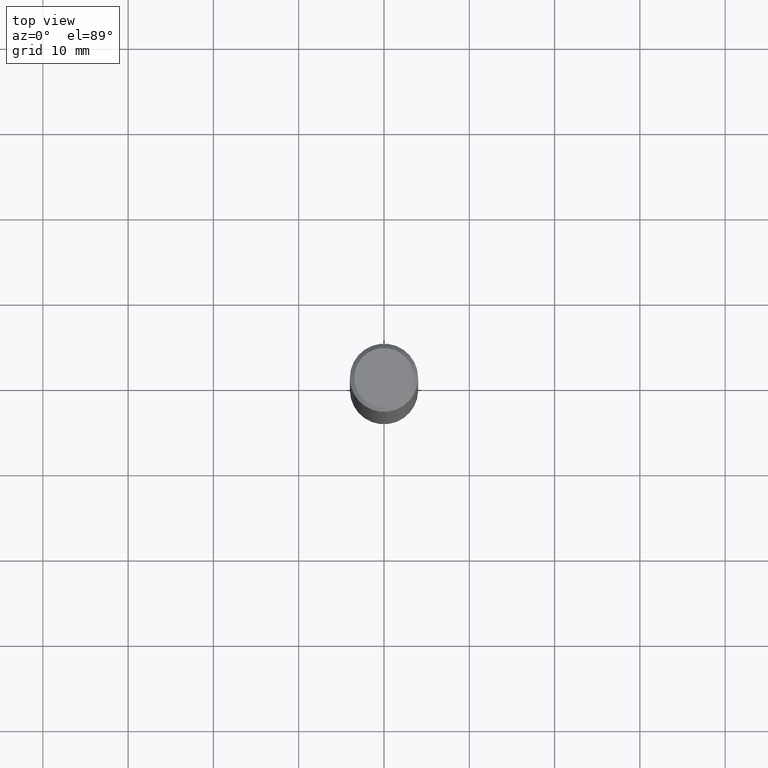
[diagram: clean part render]
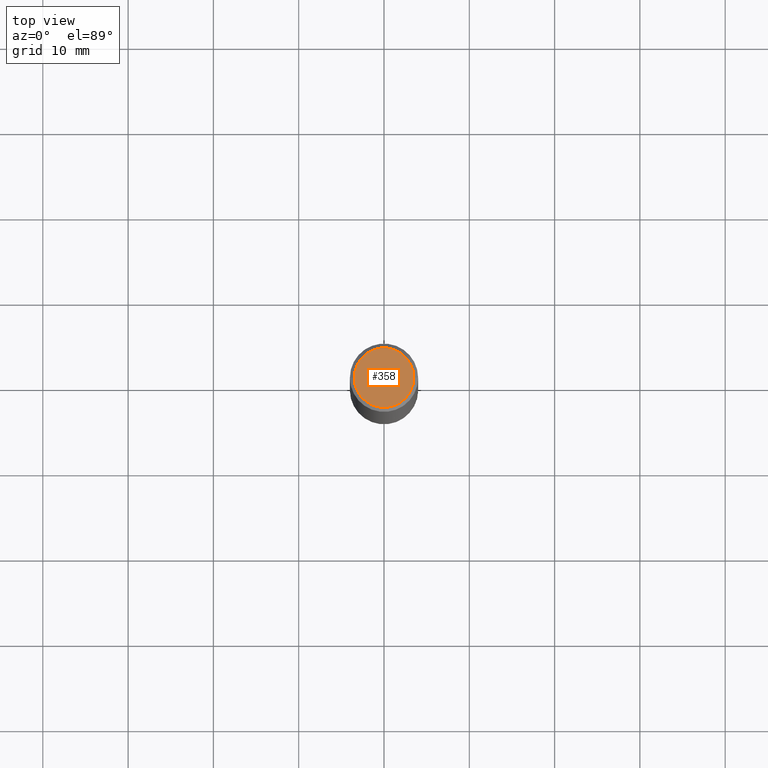
[diagram: same view with one face highlighted and labeled with its STEP entity id]
A machine part, top view. The second image highlights one B-rep face of the part: STEP entity #358.
In plain terms, the highlighted planar face has unit normal (0, -0, -1).
Its self-contained STEP definition (entity closure, byte-faithful):
#22 = VERTEX_POINT ( 'NONE', #82 ) ;
#30 = AXIS2_PLACEMENT_3D ( 'NONE', #51, #243, #83 ) ;
#51 = CARTESIAN_POINT ( 'NONE',  ( -4.906101647375532782E-45, 7.004612900788102525E-31, 2.006200870347193393E-16 ) ) ;
#70 = ORIENTED_EDGE ( 'NONE', *, *, #269, .T. ) ;
#72 = CARTESIAN_POINT ( 'NONE',  ( 9.601573681818600950E-16, 0.1374999999999997891, -3.797686405735721404E-16 ) ) ;
#82 = CARTESIAN_POINT ( 'NONE',  ( 0.1374999999999997891, -1.046838268059731505E-15, 2.006200870347263405E-16 ) ) ;
#83 = DIRECTION ( 'NONE',  ( 1.000000000000000000, -6.982962677686267499E-15, 4.874794762600771100E-29 ) ) ;
#95 = EDGE_CURVE ( 'NONE', #22, #234, #97, .T. ) ;
#97 = CIRCLE ( 'NONE', #30, 0.1374999999999997891 ) ;
#107 = AXIS2_PLACEMENT_3D ( 'NONE', #72, #200, #373 ) ;
#162 = DIRECTION ( 'NONE',  ( -2.445468806185136597E-29, 3.491481338843145583E-15, 1.000000000000000000 ) ) ;
#200 = DIRECTION ( 'NONE',  ( 2.438088387897960049E-29, -3.491481338843145188E-15, -1.000000000000000000 ) ) ;
#222 = CIRCLE ( 'NONE', #296, 0.1374999999999997891 ) ;
#234 = VERTEX_POINT ( 'NONE', #249 ) ;
#239 = PLANE ( 'NONE',  #107 ) ;
#243 = DIRECTION ( 'NONE',  ( -2.445468806185136597E-29, 3.491481338843145583E-15, 1.000000000000000000 ) ) ;
#249 = CARTESIAN_POINT ( 'NONE',  ( -0.1374999999999997891, 9.950721815702925329E-16, 2.006200870347125108E-16 ) ) ;
#269 = EDGE_CURVE ( 'NONE', #234, #22, #222, .T. ) ;
#289 = DIRECTION ( 'NONE',  ( 1.000000000000000000, -6.982962677686267499E-15, 4.874794762600771100E-29 ) ) ;
#296 = AXIS2_PLACEMENT_3D ( 'NONE', #389, #162, #289 ) ;
#358 = ADVANCED_FACE ( 'NONE', ( #361 ), #239, .F. ) ;
#359 = ORIENTED_EDGE ( 'NONE', *, *, #95, .T. ) ;
#361 = FACE_OUTER_BOUND ( 'NONE', #399, .T. ) ;
#373 = DIRECTION ( 'NONE',  ( -1.000000000000000000, 6.982962677686265922E-15, -4.876176775795935793E-29 ) ) ;
#389 = CARTESIAN_POINT ( 'NONE',  ( -4.906101647375532782E-45, 7.004612900788102525E-31, 2.006200870347193393E-16 ) ) ;
#399 = EDGE_LOOP ( 'NONE', ( #70, #359 ) ) ;